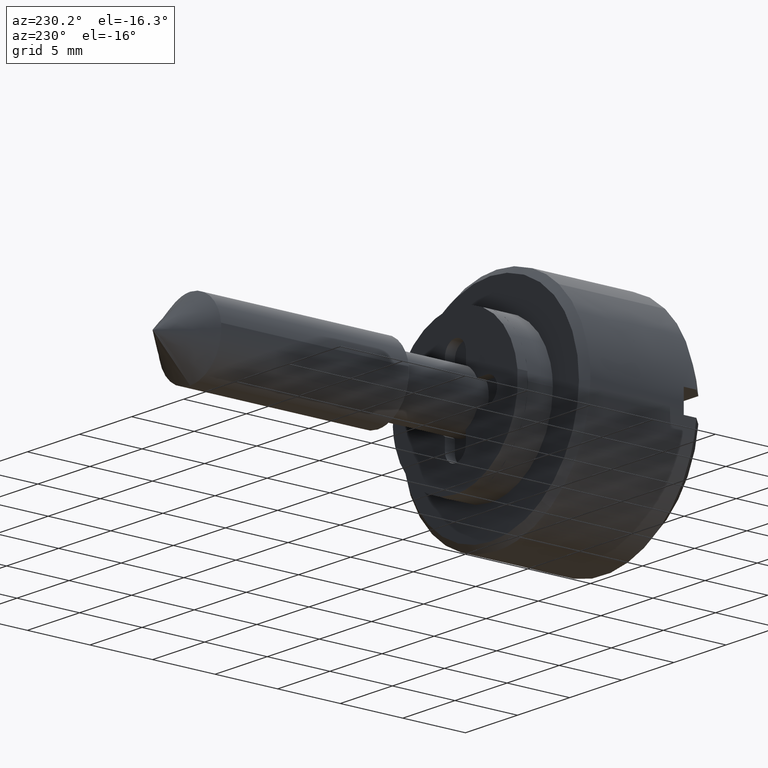
[diagram: clean part render]
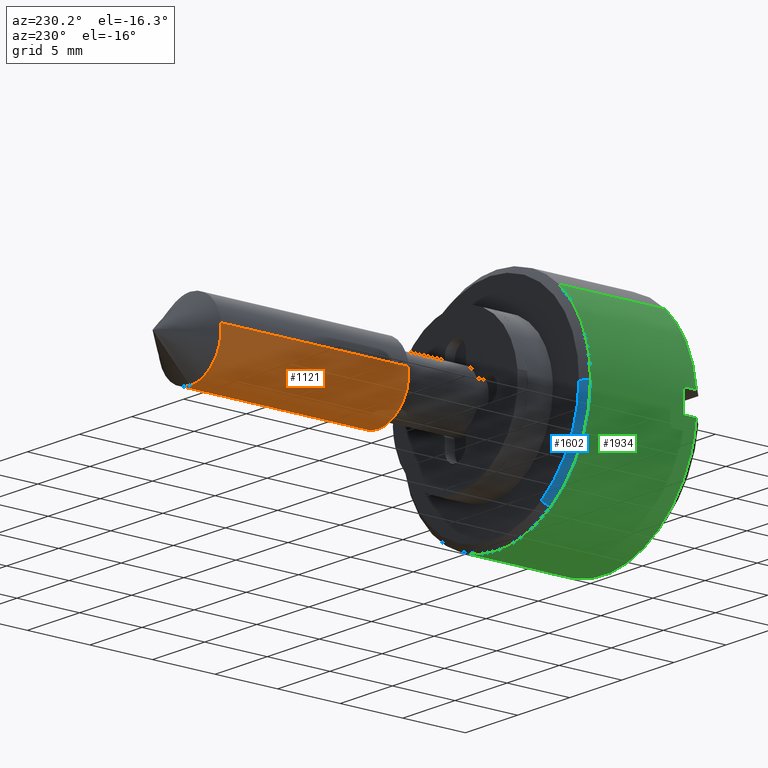
[diagram: same view with three faces highlighted in distinct colors, each labeled with its STEP entity id]
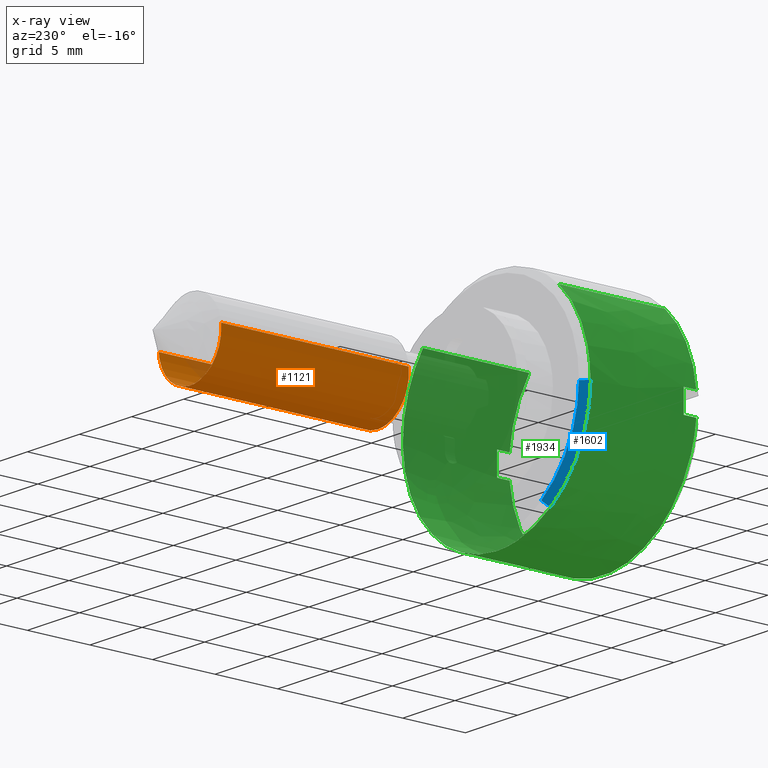
[diagram: x-ray of the same camera — body ghosted, the three highlighted faces saturated]
A machine part, auxiliary view with three faces highlighted in distinct colors.
The next image is the same camera in x-ray (body ghosted, the three faces saturated) — at least one of them is partly hidden behind the body in this view.
Their STEP definitions:

[orange] entity #1121 — the highlighted face is a freeform B-spline surface patch.
#1019=CARTESIAN_POINT('',(22.375000000000018,2.979028579091000,0.354102703970275));
#1020=CARTESIAN_POINT('',(22.375000000000021,2.989162846345817,0.268844185913933));
#1021=CARTESIAN_POINT('',(22.375000000000021,2.994404395265600,0.183145618604571));
#1022=CARTESIAN_POINT('',(22.375000000000025,3.177550013870171,-2.811258776661029));
#1023=CARTESIAN_POINT('',(22.375000000000021,0.183145618604571,-2.994404395265600));
#1024=CARTESIAN_POINT('',(22.375000000000025,-2.811258776661029,-3.177550013870171));
#1025=CARTESIAN_POINT('',(22.375000000000021,-2.994404395265600,-0.183145618604571));
#1026=CARTESIAN_POINT('',(6.615625000000001,2.979028579091000,0.354102703970275));
#1027=CARTESIAN_POINT('',(6.615625000000000,2.989162846345817,0.268844185913933));
#1028=CARTESIAN_POINT('',(6.615625000000000,2.994404395265600,0.183145618604571));
#1029=CARTESIAN_POINT('',(6.615625000000000,3.177550013870171,-2.811258776661029));
#1030=CARTESIAN_POINT('',(6.615625000000000,0.183145618604571,-2.994404395265600));
#1031=CARTESIAN_POINT('',(6.615625000000000,-2.811258776661029,-3.177550013870171));
#1032=CARTESIAN_POINT('',(6.615625000000000,-2.994404395265600,-0.183145618604571));
#1040=(BOUNDED_SURFACE()B_SPLINE_SURFACE(2,1,((#1019,#1026),(#1020,#1027),(#1021,#1028),(#1022,#1029),(#1023,#1030),(#1024,#1031),(#1025,#1032)),.UNSPECIFIED.,.F.,.F.,.U.)B_SPLINE_SURFACE_WITH_KNOTS((3,2,2,3),(2,2),(0.0,0.198822509939086,5.169385258416225,10.139948006893370),(0.0,15.759375000000020),.UNSPECIFIED.)GEOMETRIC_REPRESENTATION_ITEM()RATIONAL_B_SPLINE_SURFACE(((0.977505800795127,0.977505800795127),(0.988284271247462,0.988284271247462),(1.0,1.0),(0.707106781186548,0.707106781186548),(1.0,1.0),(0.707106781186548,0.707106781186548),(1.0,1.0)))REPRESENTATION_ITEM('')SURFACE());
#1041=CARTESIAN_POINT('',(22.0,2.979028579086541,0.354102704007787));
#1042=VERTEX_POINT('',#1041);
#1043=CARTESIAN_POINT('',(22.000000000000021,0.0,-3.000000000000015));
#1044=VERTEX_POINT('',#1043);
#1045=CARTESIAN_POINT('',(22.000000000000004,2.979028579086541,0.354102704007787));
#1046=CARTESIAN_POINT('',(21.999999999999996,3.0,0.177672358993638));
#1047=CARTESIAN_POINT('',(22.0,3.0,0.0));
#1048=CARTESIAN_POINT('',(22.000000000000007,3.0,-3.0));
#1049=CARTESIAN_POINT('',(22.0,0.0,-3.0));
#1057=(BOUNDED_CURVE()B_SPLINE_CURVE(2,(#1045,#1046,#1047,#1048,#1049),.UNSPECIFIED.,.F.,.U.)B_SPLINE_CURVE_WITH_KNOTS((3,2,3),(0.459124947022776,0.500000000000000,1.0),.UNSPECIFIED.)CURVE()GEOMETRIC_REPRESENTATION_ITEM()RATIONAL_B_SPLINE_CURVE((0.956026754179544,0.976055948328661,1.0,0.707106781186548,1.0))REPRESENTATION_ITEM(''));
#1058=EDGE_CURVE('',#1042,#1044,#1057,.T.);
#1059=ORIENTED_EDGE('',*,*,#1058,.T.);
#1060=CARTESIAN_POINT('',(22.000000000000011,-2.994404605036293,-0.183142188819594));
#1061=VERTEX_POINT('',#1060);
#1062=CARTESIAN_POINT('',(22.0,0.0,-3.0));
#1063=CARTESIAN_POINT('',(21.999999999999996,-2.822121439207742,-2.999999999999999));
#1064=CARTESIAN_POINT('',(22.000000000000018,-2.994404605036294,-0.183142188819594));
#1072=(BOUNDED_CURVE()B_SPLINE_CURVE(2,(#1062,#1063,#1064),.UNSPECIFIED.,.F.,.U.)B_SPLINE_CURVE_WITH_KNOTS((3,3),(0.0,0.478666319753510),.UNSPECIFIED.)CURVE()GEOMETRIC_REPRESENTATION_ITEM()RATIONAL_B_SPLINE_CURVE((1.0,0.719603761739610,0.976072465242537))REPRESENTATION_ITEM(''));
#1073=EDGE_CURVE('',#1044,#1061,#1072,.T.);
#1074=ORIENTED_EDGE('',*,*,#1073,.T.);
#1075=CARTESIAN_POINT('',(7.000000000000001,-2.994404602504011,-0.183142230223578));
#1076=VERTEX_POINT('',#1075);
#1077=CARTESIAN_POINT('',(22.000000000000011,-2.994404605036293,-0.183142188819594));
#1078=CARTESIAN_POINT('',(7.000000000000001,-2.994404602504011,-0.183142230223578));
#1079=QUASI_UNIFORM_CURVE('',1,(#1077,#1078),.UNSPECIFIED.,.F.,.U.);
#1080=EDGE_CURVE('',#1061,#1076,#1079,.T.);
#1081=ORIENTED_EDGE('',*,*,#1080,.T.);
#1082=CARTESIAN_POINT('',(7.0,0.0,-3.0));
#1083=VERTEX_POINT('',#1082);
#1084=CARTESIAN_POINT('',(7.0,0.0,-3.0));
#1085=CARTESIAN_POINT('',(7.0,-2.822121400113024,-3.0));
#1086=CARTESIAN_POINT('',(7.000000000000001,-2.994404602504011,-0.183142230223578));
#1094=(BOUNDED_CURVE()B_SPLINE_CURVE(2,(#1084,#1085,#1086),.UNSPECIFIED.,.F.,.U.)B_SPLINE_CURVE_WITH_KNOTS((3,3),(0.500000000000000,0.739333157490930),.UNSPECIFIED.)CURVE()GEOMETRIC_REPRESENTATION_ITEM()RATIONAL_B_SPLINE_CURVE((1.0,0.719603764534779,0.976072460129250))REPRESENTATION_ITEM(''));
#1095=EDGE_CURVE('',#1083,#1076,#1094,.T.);
#1096=ORIENTED_EDGE('',*,*,#1095,.F.);
#1097=CARTESIAN_POINT('',(7.0,2.979028579086541,0.354102704007787));
#1098=VERTEX_POINT('',#1097);
#1099=CARTESIAN_POINT('',(7.0,2.979028579086541,0.354102704007787));
#1100=CARTESIAN_POINT('',(7.000000000000001,3.0,0.177672358993638));
#1101=CARTESIAN_POINT('',(7.0,3.0,0.0));
#1102=CARTESIAN_POINT('',(6.999999999999999,3.0,-3.0));
#1103=CARTESIAN_POINT('',(7.0,0.0,-3.0));
#1111=(BOUNDED_CURVE()B_SPLINE_CURVE(2,(#1099,#1100,#1101,#1102,#1103),.UNSPECIFIED.,.F.,.U.)B_SPLINE_CURVE_WITH_KNOTS((3,2,3),(0.229562473511388,0.250000000000000,0.500000000000000),.UNSPECIFIED.)CURVE()GEOMETRIC_REPRESENTATION_ITEM()RATIONAL_B_SPLINE_CURVE((0.956026754179544,0.976055948328661,1.0,0.707106781186548,1.0))REPRESENTATION_ITEM(''));
#1112=EDGE_CURVE('',#1098,#1083,#1111,.T.);
#1113=ORIENTED_EDGE('',*,*,#1112,.F.);
#1114=CARTESIAN_POINT('',(22.0,2.979028579086541,0.354102704007787));
#1115=CARTESIAN_POINT('',(7.0,2.979028579086541,0.354102704007787));
#1116=QUASI_UNIFORM_CURVE('',1,(#1114,#1115),.UNSPECIFIED.,.F.,.U.);
#1117=EDGE_CURVE('',#1042,#1098,#1116,.T.);
#1118=ORIENTED_EDGE('',*,*,#1117,.F.);
#1119=EDGE_LOOP('',(#1059,#1074,#1081,#1096,#1113,#1118));
#1120=FACE_OUTER_BOUND('',#1119,.T.);
#1121=ADVANCED_FACE('',(#1120),#1040,.T.);

[blue] entity #1602 — the highlighted face is a freeform B-spline surface patch.
#1413=CARTESIAN_POINT('',(-2.500000000000686,5.165861152401353,-7.369795014389601));
#1414=VERTEX_POINT('',#1413);
#1430=CARTESIAN_POINT('',(-2.000000000000709,4.878868866157049,-6.960361958034484));
#1431=VERTEX_POINT('',#1430);
#1432=CARTESIAN_POINT('',(-2.000000000000709,4.878868866157049,-6.960361958034484));
#1433=CARTESIAN_POINT('',(-2.500000000000686,5.165861152401353,-7.369795014389601));
#1434=QUASI_UNIFORM_CURVE('',1,(#1432,#1433),.UNSPECIFIED.,.F.,.U.);
#1435=EDGE_CURVE('',#1431,#1414,#1434,.T.);
#1469=CARTESIAN_POINT('',(-2.000000000003222,8.499676346048370,-0.074175551759162));
#1470=VERTEX_POINT('',#1469);
#1486=CARTESIAN_POINT('',(-2.500000000001362,8.999657307578758,-0.078538819494966));
#1487=VERTEX_POINT('',#1486);
#1488=CARTESIAN_POINT('',(-2.000000000003222,8.499676346048370,-0.074175551759162));
#1489=CARTESIAN_POINT('',(-2.500000000001362,8.999657307578758,-0.078538819494966));
#1490=QUASI_UNIFORM_CURVE('',1,(#1488,#1489),.UNSPECIFIED.,.F.,.U.);
#1491=EDGE_CURVE('',#1470,#1487,#1490,.T.);
#1558=CARTESIAN_POINT('',(-1.987500000000101,8.487176822007138,-0.074066470042448));
#1559=CARTESIAN_POINT('',(-1.987500000000102,8.449053430331890,-4.442574460460221));
#1560=CARTESIAN_POINT('',(-1.987500000000102,4.871694058989055,-6.950126131633188));
#1561=CARTESIAN_POINT('',(-2.512812500000059,9.012469319716800,-0.078650628221438));
#1562=CARTESIAN_POINT('',(-2.512812500000060,8.971986376443390,-4.717536451183118));
#1563=CARTESIAN_POINT('',(-2.512812500000060,5.173215329723990,-7.380286736466609));
#1571=(BOUNDED_SURFACE()B_SPLINE_SURFACE(2,1,((#1558,#1561),(#1559,#1562),(#1560,#1563)),.UNSPECIFIED.,.F.,.F.,.U.)B_SPLINE_SURFACE_WITH_KNOTS((3,3),(2,2),(0.0,8.898679135690960),(0.0,1.0),.UNSPECIFIED.)GEOMETRIC_REPRESENTATION_ITEM()RATIONAL_B_SPLINE_SURFACE(((1.0,1.0),(0.824264068711928,0.824264068711928),(0.859411254969543,0.859411254969543)))REPRESENTATION_ITEM('')SURFACE());
#1572=CARTESIAN_POINT('',(-2.500000000001362,8.999657307578758,-0.078538819494966));
#1573=CARTESIAN_POINT('',(-2.500000000000060,8.959231914333337,-4.710830061153899));
#1574=CARTESIAN_POINT('',(-2.500000000000686,5.165861152401353,-7.369795014389601));
#1582=(BOUNDED_CURVE()B_SPLINE_CURVE(2,(#1572,#1573,#1574),.UNSPECIFIED.,.F.,.U.)B_SPLINE_CURVE_WITH_KNOTS((3,3),(0.751539894335363,0.901326273796632),.UNSPECIFIED.)CURVE()GEOMETRIC_REPRESENTATION_ITEM()RATIONAL_B_SPLINE_CURVE((0.996414028099537,0.823090203821285,0.860049271925627))REPRESENTATION_ITEM(''));
#1583=EDGE_CURVE('',#1487,#1414,#1582,.T.);
#1584=ORIENTED_EDGE('',*,*,#1583,.F.);
#1585=ORIENTED_EDGE('',*,*,#1491,.F.);
#1586=CARTESIAN_POINT('',(-2.000000000000709,4.878868866157051,-6.960361958034485));
#1587=CARTESIAN_POINT('',(-2.000000000000101,8.461496807967091,-4.449117279988458));
#1588=CARTESIAN_POINT('',(-2.000000000003222,8.499676346048370,-0.074175551759162));
#1596=(BOUNDED_CURVE()B_SPLINE_CURVE(2,(#1586,#1587,#1588),.UNSPECIFIED.,.F.,.U.)B_SPLINE_CURVE_WITH_KNOTS((3,3),(0.098673726203377,0.248460105664061),.UNSPECIFIED.)CURVE()GEOMETRIC_REPRESENTATION_ITEM()RATIONAL_B_SPLINE_CURVE((0.860049271925623,0.823090203821438,0.996414028098204))REPRESENTATION_ITEM(''));
#1597=EDGE_CURVE('',#1431,#1470,#1596,.T.);
#1598=ORIENTED_EDGE('',*,*,#1597,.F.);
#1599=ORIENTED_EDGE('',*,*,#1435,.T.);
#1600=EDGE_LOOP('',(#1584,#1585,#1598,#1599));
#1601=FACE_OUTER_BOUND('',#1600,.T.);
#1602=ADVANCED_FACE('',(#1601),#1571,.T.);

[green] entity #1934 — the highlighted face is a freeform B-spline surface patch.
#1413=CARTESIAN_POINT('',(-2.500000000000686,5.165861152401353,-7.369795014389601));
#1414=VERTEX_POINT('',#1413);
#1415=CARTESIAN_POINT('',(-2.500000000000060,0.0,-9.0));
#1416=VERTEX_POINT('',#1415);
#1417=CARTESIAN_POINT('',(-2.500000000000686,5.165861152401353,-7.369795014389601));
#1418=CARTESIAN_POINT('',(-2.500000000000059,2.840154707549706,-9.000000000000002));
#1419=CARTESIAN_POINT('',(-2.500000000000060,0.0,-9.0));
#1427=(BOUNDED_CURVE()B_SPLINE_CURVE(2,(#1417,#1418,#1419),.UNSPECIFIED.,.F.,.U.)B_SPLINE_CURVE_WITH_KNOTS((3,3),(0.901326273796632,1.0),.UNSPECIFIED.)CURVE()GEOMETRIC_REPRESENTATION_ITEM()RATIONAL_B_SPLINE_CURVE((0.860049271925627,0.884396538879913,1.0))REPRESENTATION_ITEM(''));
#1428=EDGE_CURVE('',#1414,#1416,#1427,.T.);
#1486=CARTESIAN_POINT('',(-2.500000000001362,8.999657307578758,-0.078538819494966));
#1487=VERTEX_POINT('',#1486);
#1493=CARTESIAN_POINT('',(-2.500000000000060,5.963579655238609,6.740602176039100));
#1494=VERTEX_POINT('',#1493);
#1495=CARTESIAN_POINT('',(-2.500000000000061,5.963579655238609,6.740602176039100));
#1496=CARTESIAN_POINT('',(-2.500000000000060,9.000000000000002,4.054205008566499));
#1497=CARTESIAN_POINT('',(-2.500000000000060,9.0,0.0));
#1498=CARTESIAN_POINT('',(-2.500000000000059,9.0,-0.039270157395879));
#1499=CARTESIAN_POINT('',(-2.500000000001361,8.999657307578758,-0.078538819494966));
#1507=(BOUNDED_CURVE()B_SPLINE_CURVE(2,(#1495,#1496,#1497,#1498,#1499),.UNSPECIFIED.,.F.,.U.)B_SPLINE_CURVE_WITH_KNOTS((3,2,3),(0.615779870612036,0.750000000000000,0.751539894335362),.UNSPECIFIED.)CURVE()GEOMETRIC_REPRESENTATION_ITEM()RATIONAL_B_SPLINE_CURVE((0.854350161240478,0.842751337096005,1.0,0.998195901565934,0.996414028099539))REPRESENTATION_ITEM(''));
#1508=EDGE_CURVE('',#1494,#1487,#1507,.T.);
#1525=CARTESIAN_POINT('',(-2.500000000000060,-7.070639981337940,5.568307665198088));
#1526=VERTEX_POINT('',#1525);
#1540=CARTESIAN_POINT('',(-2.500000000000060,0.0,-9.0));
#1541=CARTESIAN_POINT('',(-2.500000000000060,-9.0,-9.0));
#1542=CARTESIAN_POINT('',(-2.500000000000060,-9.0,0.0));
#1543=CARTESIAN_POINT('',(-2.500000000000060,-9.000000000000004,3.118405305885699));
#1544=CARTESIAN_POINT('',(-2.500000000000060,-7.070639981337941,5.568307665198087));
#1552=(BOUNDED_CURVE()B_SPLINE_CURVE(2,(#1540,#1541,#1542,#1543,#1544),.UNSPECIFIED.,.F.,.U.)B_SPLINE_CURVE_WITH_KNOTS((3,2,3),(0.0,0.250000000000000,0.357127519602431),.UNSPECIFIED.)CURVE()GEOMETRIC_REPRESENTATION_ITEM()RATIONAL_B_SPLINE_CURVE((1.0,0.707106781186547,1.0,0.874492303840571,0.856547233125744))REPRESENTATION_ITEM(''));
#1553=EDGE_CURVE('',#1416,#1526,#1552,.T.);
#1572=CARTESIAN_POINT('',(-2.500000000001362,8.999657307578758,-0.078538819494966));
#1573=CARTESIAN_POINT('',(-2.500000000000060,8.959231914333337,-4.710830061153899));
#1574=CARTESIAN_POINT('',(-2.500000000000686,5.165861152401353,-7.369795014389601));
#1582=(BOUNDED_CURVE()B_SPLINE_CURVE(2,(#1572,#1573,#1574),.UNSPECIFIED.,.F.,.U.)B_SPLINE_CURVE_WITH_KNOTS((3,3),(0.751539894335363,0.901326273796632),.UNSPECIFIED.)CURVE()GEOMETRIC_REPRESENTATION_ITEM()RATIONAL_B_SPLINE_CURVE((0.996414028099537,0.823090203821285,0.860049271925627))REPRESENTATION_ITEM(''));
#1583=EDGE_CURVE('',#1487,#1414,#1582,.T.);
#1789=CARTESIAN_POINT('',(-11.212397500000002,-7.070639198512934,5.568308659229686));
#1790=CARTESIAN_POINT('',(-11.212397500000002,-12.329090635285770,-1.108873790183274));
#1791=CARTESIAN_POINT('',(-11.212397500000000,-5.963580433941632,-6.740601487101019));
#1792=CARTESIAN_POINT('',(-11.212397500000002,0.777021053159387,-12.704181921042650));
#1793=CARTESIAN_POINT('',(-11.212397500000000,6.740601487101019,-5.963580433941632));
#1794=CARTESIAN_POINT('',(-11.212397500000002,12.704181921042650,0.777021053159387));
#1795=CARTESIAN_POINT('',(-11.212397500000000,5.963580433941632,6.740601487101019));
#1796=CARTESIAN_POINT('',(-2.282190062500059,-7.070639198512934,5.568308659229686));
#1797=CARTESIAN_POINT('',(-2.282190062500060,-12.329090635285770,-1.108873790183274));
#1798=CARTESIAN_POINT('',(-2.282190062500060,-5.963580433941632,-6.740601487101019));
#1799=CARTESIAN_POINT('',(-2.282190062500060,0.777021053159387,-12.704181921042650));
#1800=CARTESIAN_POINT('',(-2.282190062500060,6.740601487101019,-5.963580433941632));
#1801=CARTESIAN_POINT('',(-2.282190062500061,12.704181921042650,0.777021053159387));
#1802=CARTESIAN_POINT('',(-2.282190062500061,5.963580433941632,6.740601487101019));
#1810=(BOUNDED_SURFACE()B_SPLINE_SURFACE(2,1,((#1789,#1796),(#1790,#1797),(#1791,#1798),(#1792,#1799),(#1793,#1800),(#1794,#1801),(#1795,#1802)),.UNSPECIFIED.,.F.,.F.,.U.)B_SPLINE_SURFACE_WITH_KNOTS((3,2,2,3),(2,2),(0.0,14.315220715614160,29.226908961045570,44.138597206476987),(0.0,8.930207437499943),.UNSPECIFIED.)GEOMETRIC_REPRESENTATION_ITEM()RATIONAL_B_SPLINE_SURFACE(((0.977505800795127,0.977505800795127),(0.718822509939086,0.718822509939086),(1.0,1.0),(0.707106781186548,0.707106781186548),(1.0,1.0),(0.707106781186548,0.707106781186548),(1.0,1.0)))REPRESENTATION_ITEM('')SURFACE());
#1811=CARTESIAN_POINT('',(-10.999899999999990,-7.070640838140097,5.568306577229603));
#1812=VERTEX_POINT('',#1811);
#1813=CARTESIAN_POINT('',(-10.999900000000000,-8.954886933959578,0.900000000000000));
#1814=VERTEX_POINT('',#1813);
#1815=CARTESIAN_POINT('',(-10.999899999999993,-7.070640838140097,5.568306577229603));
#1816=CARTESIAN_POINT('',(-10.999900000000002,-8.692712983793550,3.508597867518163));
#1817=CARTESIAN_POINT('',(-10.999900000000000,-8.954886933959578,0.900000000000001));
#1825=(BOUNDED_CURVE()B_SPLINE_CURVE(2,(#1815,#1816,#1817),.UNSPECIFIED.,.F.,.U.)B_SPLINE_CURVE_WITH_KNOTS((3,3),(0.804778712613623,1.0),.UNSPECIFIED.)CURVE()GEOMETRIC_REPRESENTATION_ITEM()RATIONAL_B_SPLINE_CURVE((0.877012510118941,0.899117388459989,1.0))REPRESENTATION_ITEM(''));
#1826=EDGE_CURVE('',#1812,#1814,#1825,.T.);
#1827=ORIENTED_EDGE('',*,*,#1826,.T.);
#1828=CARTESIAN_POINT('',(-10.0,-8.954886933959628,0.900000000000000));
#1829=VERTEX_POINT('',#1828);
#1830=CARTESIAN_POINT('',(-10.999900000000000,-8.954886933959578,0.900000000000000));
#1831=CARTESIAN_POINT('',(-10.0,-8.954886933959628,0.900000000000000));
#1832=QUASI_UNIFORM_CURVE('',1,(#1830,#1831),.UNSPECIFIED.,.F.,.U.);
#1833=EDGE_CURVE('',#1814,#1829,#1832,.T.);
#1834=ORIENTED_EDGE('',*,*,#1833,.T.);
#1835=CARTESIAN_POINT('',(-10.0,-8.954886933959628,-0.900000000000000));
#1836=VERTEX_POINT('',#1835);
#1837=CARTESIAN_POINT('',(-10.0,-8.954886933959628,0.900000000000000));
#1838=CARTESIAN_POINT('',(-10.0,-9.045340337332908,1.626303E-015));
#1839=CARTESIAN_POINT('',(-10.0,-8.954886933959628,-0.900000000000000));
#1847=(BOUNDED_CURVE()B_SPLINE_CURVE(2,(#1837,#1838,#1839),.UNSPECIFIED.,.F.,.U.)CURVE()GEOMETRIC_REPRESENTATION_ITEM()QUASI_UNIFORM_CURVE()RATIONAL_B_SPLINE_CURVE((1.0,0.994987437106620,1.0))REPRESENTATION_ITEM(''));
#1848=EDGE_CURVE('',#1829,#1836,#1847,.T.);
#1849=ORIENTED_EDGE('',*,*,#1848,.T.);
#1850=CARTESIAN_POINT('',(-10.999900000000000,-8.954886933959578,-0.900000000000000));
#1851=VERTEX_POINT('',#1850);
#1852=CARTESIAN_POINT('',(-10.0,-8.954886933959628,-0.900000000000000));
#1853=CARTESIAN_POINT('',(-10.999900000000000,-8.954886933959578,-0.900000000000000));
#1854=QUASI_UNIFORM_CURVE('',1,(#1852,#1853),.UNSPECIFIED.,.F.,.U.);
#1855=EDGE_CURVE('',#1836,#1851,#1854,.T.);
#1856=ORIENTED_EDGE('',*,*,#1855,.T.);
#1857=CARTESIAN_POINT('',(-10.999900000000000,8.954886933959578,-0.900000000000000));
#1858=VERTEX_POINT('',#1857);
#1859=CARTESIAN_POINT('',(-10.999900000000000,-8.954886933959578,-0.899999999999998));
#1860=CARTESIAN_POINT('',(-10.999900000000000,-8.140806303599618,-9.0));
#1861=CARTESIAN_POINT('',(-10.999900000000000,0.0,-9.0));
#1862=CARTESIAN_POINT('',(-10.999900000000000,8.140806303599614,-9.0));
#1863=CARTESIAN_POINT('',(-10.999900000000000,8.954886933959578,-0.900000000000002));
#1871=(BOUNDED_CURVE()B_SPLINE_CURVE(2,(#1859,#1860,#1861,#1862,#1863),.UNSPECIFIED.,.F.,.U.)B_SPLINE_CURVE_WITH_KNOTS((3,2,3),(0.0,0.500000000000000,1.0),.UNSPECIFIED.)CURVE()GEOMETRIC_REPRESENTATION_ITEM()RATIONAL_B_SPLINE_CURVE((1.0,0.741619848709566,1.0,0.741619848709566,1.0))REPRESENTATION_ITEM(''));
#1872=EDGE_CURVE('',#1851,#1858,#1871,.T.);
#1873=ORIENTED_EDGE('',*,*,#1872,.T.);
#1874=CARTESIAN_POINT('',(-10.0,8.954886933959628,-0.900000000000000));
#1875=VERTEX_POINT('',#1874);
#1876=CARTESIAN_POINT('',(-10.999900000000000,8.954886933959578,-0.900000000000000));
#1877=CARTESIAN_POINT('',(-10.0,8.954886933959628,-0.900000000000000));
#1878=QUASI_UNIFORM_CURVE('',1,(#1876,#1877),.UNSPECIFIED.,.F.,.U.);
#1879=EDGE_CURVE('',#1858,#1875,#1878,.T.);
#1880=ORIENTED_EDGE('',*,*,#1879,.T.);
#1881=CARTESIAN_POINT('',(-10.0,8.954886933959628,0.900000000000000));
#1882=VERTEX_POINT('',#1881);
#1883=CARTESIAN_POINT('',(-10.0,8.954886933959628,-0.900000000000000));
#1884=CARTESIAN_POINT('',(-10.0,9.045340337332908,-2.602085E-015));
#1885=CARTESIAN_POINT('',(-10.0,8.954886933959628,0.900000000000000));
#1893=(BOUNDED_CURVE()B_SPLINE_CURVE(2,(#1883,#1884,#1885),.UNSPECIFIED.,.F.,.U.)CURVE()GEOMETRIC_REPRESENTATION_ITEM()QUASI_UNIFORM_CURVE()RATIONAL_B_SPLINE_CURVE((1.0,0.994987437106620,1.0))REPRESENTATION_ITEM(''));
#1894=EDGE_CURVE('',#1875,#1882,#1893,.T.);
#1895=ORIENTED_EDGE('',*,*,#1894,.T.);
#1896=CARTESIAN_POINT('',(-10.999900000000000,8.954886933959578,0.900000000000000));
#1897=VERTEX_POINT('',#1896);
#1898=CARTESIAN_POINT('',(-10.0,8.954886933959628,0.900000000000000));
#1899=CARTESIAN_POINT('',(-10.999900000000000,8.954886933959578,0.900000000000000));
#1900=QUASI_UNIFORM_CURVE('',1,(#1898,#1899),.UNSPECIFIED.,.F.,.U.);
#1901=EDGE_CURVE('',#1882,#1897,#1900,.T.);
#1902=ORIENTED_EDGE('',*,*,#1901,.T.);
#1903=CARTESIAN_POINT('',(-10.999900000000000,5.963580305969169,6.740601600321490));
#1904=VERTEX_POINT('',#1903);
#1905=CARTESIAN_POINT('',(-10.999900000000000,8.954886933959578,0.900000000000001));
#1906=CARTESIAN_POINT('',(-10.999900000000002,8.602535616445532,4.405851343744415));
#1907=CARTESIAN_POINT('',(-10.999899999999997,5.963580305969169,6.740601600321490));
#1915=(BOUNDED_CURVE()B_SPLINE_CURVE(2,(#1905,#1906,#1907),.UNSPECIFIED.,.F.,.U.)B_SPLINE_CURVE_WITH_KNOTS((3,3),(0.0,0.253570810007273),.UNSPECIFIED.)CURVE()GEOMETRIC_REPRESENTATION_ITEM()RATIONAL_B_SPLINE_CURVE((1.0,0.868964671494966,0.870836280544294))REPRESENTATION_ITEM(''));
#1916=EDGE_CURVE('',#1897,#1904,#1915,.T.);
#1917=ORIENTED_EDGE('',*,*,#1916,.T.);
#1918=CARTESIAN_POINT('',(-10.999900000000000,5.963580305969169,6.740601600321490));
#1919=CARTESIAN_POINT('',(-2.500000000000060,5.963579655238609,6.740602176039100));
#1920=QUASI_UNIFORM_CURVE('',1,(#1918,#1919),.UNSPECIFIED.,.F.,.U.);
#1921=EDGE_CURVE('',#1904,#1494,#1920,.T.);
#1922=ORIENTED_EDGE('',*,*,#1921,.T.);
#1923=ORIENTED_EDGE('',*,*,#1508,.T.);
#1924=ORIENTED_EDGE('',*,*,#1583,.T.);
#1925=ORIENTED_EDGE('',*,*,#1428,.T.);
#1926=ORIENTED_EDGE('',*,*,#1553,.T.);
#1927=CARTESIAN_POINT('',(-10.999899999999990,-7.070640838140097,5.568306577229603));
#1928=CARTESIAN_POINT('',(-2.500000000000060,-7.070639981337940,5.568307665198088));
#1929=QUASI_UNIFORM_CURVE('',1,(#1927,#1928),.UNSPECIFIED.,.F.,.U.);
#1930=EDGE_CURVE('',#1812,#1526,#1929,.T.);
#1931=ORIENTED_EDGE('',*,*,#1930,.F.);
#1932=EDGE_LOOP('',(#1827,#1834,#1849,#1856,#1873,#1880,#1895,#1902,#1917,#1922,#1923,#1924,#1925,#1926,#1931));
#1933=FACE_OUTER_BOUND('',#1932,.T.);
#1934=ADVANCED_FACE('',(#1933),#1810,.T.);